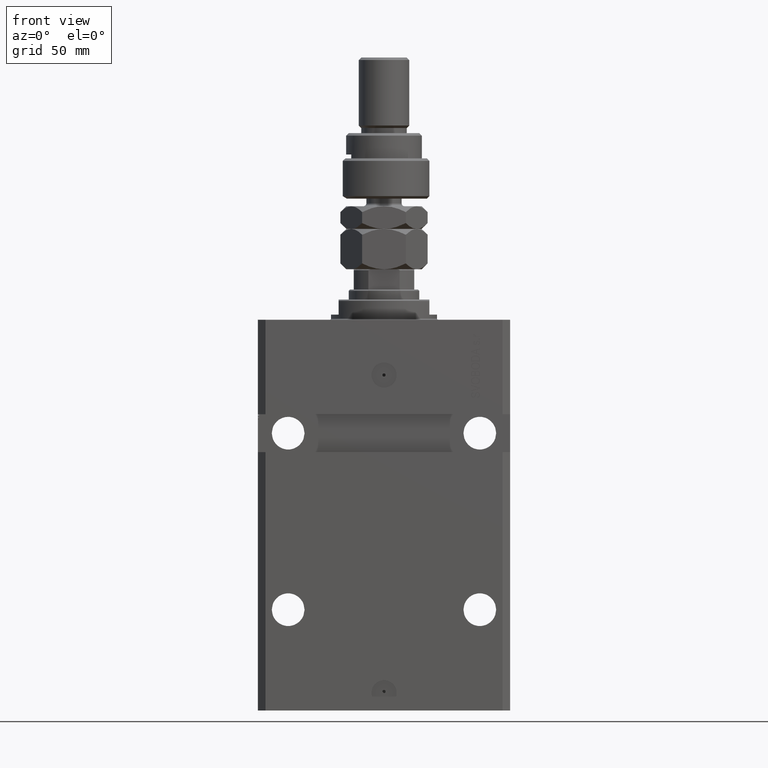
[diagram: clean part render]
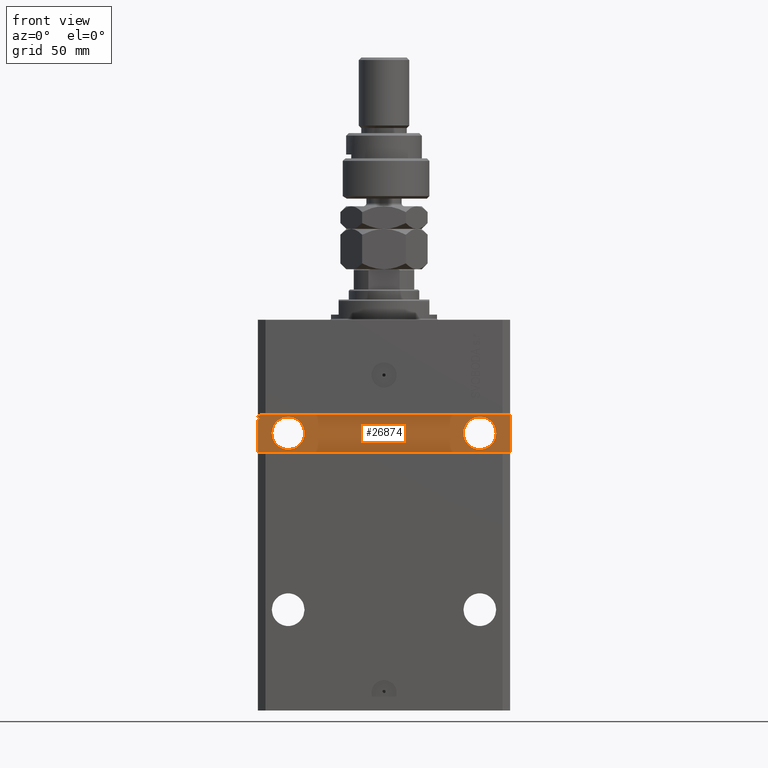
[diagram: same view with one face highlighted and labeled with its STEP entity id]
A machine part, front view. The second image highlights one B-rep face of the part: STEP entity #26874.
In plain terms, the highlighted planar face has unit normal (0, -1, 0).
Its self-contained STEP definition (entity closure, byte-faithful):
#118 = VECTOR ( 'NONE', #19372, 1000.000000000000000 ) ;
#169 = CARTESIAN_POINT ( 'NONE',  ( -50.00000000000002842, -32.50000000000000711, -37.50000000000000711 ) ) ;
#1072 = DIRECTION ( 'NONE',  ( -1.000000000000000000, -0.000000000000000000, -0.000000000000000000 ) ) ;
#1579 = LINE ( 'NONE', #48297, #29718 ) ;
#2379 = AXIS2_PLACEMENT_3D ( 'NONE', #10240, #21335, #25968 ) ;
#2575 = ORIENTED_EDGE ( 'NONE', *, *, #19072, .F. ) ;
#2998 = VECTOR ( 'NONE', #25062, 1000.000000000000000 ) ;
#3074 = VECTOR ( 'NONE', #26968, 1000.000000000000000 ) ;
#3272 = CARTESIAN_POINT ( 'NONE',  ( -49.50000000000000711, -32.50000000000000711, -37.99999999999999289 ) ) ;
#3303 = CARTESIAN_POINT ( 'NONE',  ( -50.00000000000002842, -32.50000000000000711, -37.99999999999999289 ) ) ;
#3553 = DIRECTION ( 'NONE',  ( 1.000000000000000000, 0.000000000000000000, 0.000000000000000000 ) ) ;
#3692 = DIRECTION ( 'NONE',  ( 1.387778780781445182E-16, -1.000000000000000000, 0.000000000000000000 ) ) ;
#4020 = LINE ( 'NONE', #31618, #3074 ) ;
#4213 = ORIENTED_EDGE ( 'NONE', *, *, #37078, .F. ) ;
#4556 = VECTOR ( 'NONE', #9830, 1000.000000000000000 ) ;
#5388 = VERTEX_POINT ( 'NONE', #30489 ) ;
#7564 = PLANE ( 'NONE',  #8154 ) ;
#7758 = DIRECTION ( 'NONE',  ( 8.806446732139696505E-17, -1.000000000000000000, 6.162975822039154730E-33 ) ) ;
#8154 = AXIS2_PLACEMENT_3D ( 'NONE', #46281, #3692, #19429 ) ;
#8615 = ORIENTED_EDGE ( 'NONE', *, *, #48439, .T. ) ;
#9168 = VECTOR ( 'NONE', #31484, 1000.000000000000000 ) ;
#9330 = CARTESIAN_POINT ( 'NONE',  ( -50.00000000000002842, -32.50000000000000711, -52.50000000000000000 ) ) ;
#9830 = DIRECTION ( 'NONE',  ( 1.000000000000000000, 0.000000000000000000, 0.000000000000000000 ) ) ;
#10055 = VECTOR ( 'NONE', #39111, 1000.000000000000000 ) ;
#10214 = VERTEX_POINT ( 'NONE', #22037 ) ;
#10225 = DIRECTION ( 'NONE',  ( -1.000000000000000000, -0.000000000000000000, -0.000000000000000000 ) ) ;
#10240 = CARTESIAN_POINT ( 'NONE',  ( -37.99999999999998579, -32.50000000000000711, -45.00000000000000711 ) ) ;
#10536 = VECTOR ( 'NONE', #46528, 1000.000000000000000 ) ;
#10616 = CIRCLE ( 'NONE', #2379, 6.499999999999999112 ) ;
#11076 = CARTESIAN_POINT ( 'NONE',  ( -49.49999999999999289, -32.50000000000000711, -39.43474004052496440 ) ) ;
#11277 = CIRCLE ( 'NONE', #35161, 6.499999999999999112 ) ;
#11367 = ORIENTED_EDGE ( 'NONE', *, *, #45702, .T. ) ;
#11379 = VECTOR ( 'NONE', #32747, 1000.000000000000000 ) ;
#11467 = LINE ( 'NONE', #12232, #29010 ) ;
#12232 = CARTESIAN_POINT ( 'NONE',  ( -49.50000000000000711, -32.49999999999999289, -37.62144886363635976 ) ) ;
#13959 = LINE ( 'NONE', #28915, #4556 ) ;
#14099 = LINE ( 'NONE', #23353, #10055 ) ;
#15234 = LINE ( 'NONE', #50099, #118 ) ;
#15481 = CARTESIAN_POINT ( 'NONE',  ( 31.50000000000001421, -32.50000000000000000, -45.00000000000000000 ) ) ;
#15749 = CARTESIAN_POINT ( 'NONE',  ( 49.99999999999999289, -32.49999999999999289, -52.49999999999998579 ) ) ;
#15824 = EDGE_CURVE ( 'NONE', #5388, #45083, #13959, .T. ) ;
#15975 = CARTESIAN_POINT ( 'NONE',  ( -49.49999999999977973, -32.50000000000000711, -38.87066337907741342 ) ) ;
#16161 = VERTEX_POINT ( 'NONE', #3303 ) ;
#18425 = VERTEX_POINT ( 'NONE', #33771 ) ;
#18672 = EDGE_LOOP ( 'NONE', ( #48674, #23946 ) ) ;
#18852 = CARTESIAN_POINT ( 'NONE',  ( 38.00000000000001421, -32.50000000000000000, -45.00000000000000000 ) ) ;
#18924 = EDGE_CURVE ( 'NONE', #46653, #29247, #32057, .T. ) ;
#19029 = VERTEX_POINT ( 'NONE', #48823 ) ;
#19072 = EDGE_CURVE ( 'NONE', #19029, #25015, #11277, .T. ) ;
#19372 = DIRECTION ( 'NONE',  ( 0.000000000000000000, 0.000000000000000000, -1.000000000000000000 ) ) ;
#19429 = DIRECTION ( 'NONE',  ( 1.000000000000000000, 1.387778780781445182E-16, 0.000000000000000000 ) ) ;
#20687 = EDGE_CURVE ( 'NONE', #16161, #43578, #4020, .T. ) ;
#21330 = EDGE_CURVE ( 'NONE', #18425, #23278, #48322, .T. ) ;
#21335 = DIRECTION ( 'NONE',  ( 1.101411730780568590E-16, -1.000000000000000000, 0.000000000000000000 ) ) ;
#22037 = CARTESIAN_POINT ( 'NONE',  ( -49.50000000000000711, -32.50000000000000711, -37.62144886363635976 ) ) ;
#22582 = CARTESIAN_POINT ( 'NONE',  ( -50.00000000000002842, -32.50000000000000711, -52.50000000000000000 ) ) ;
#22746 = LINE ( 'NONE', #34901, #10536 ) ;
#22934 = ORIENTED_EDGE ( 'NONE', *, *, #45714, .T. ) ;
#23131 = VERTEX_POINT ( 'NONE', #3272 ) ;
#23278 = VERTEX_POINT ( 'NONE', #169 ) ;
#23353 = CARTESIAN_POINT ( 'NONE',  ( -49.50000000000016342, -32.50000000000000711, -39.86910993535713743 ) ) ;
#23719 = CIRCLE ( 'NONE', #31131, 6.499999999999999112 ) ;
#23801 = CARTESIAN_POINT ( 'NONE',  ( 49.99999999999999289, -32.49999999999999289, -37.49999999999999289 ) ) ;
#23861 = CARTESIAN_POINT ( 'NONE',  ( -50.00000000000002842, -32.50000000000000711, -38.87066340383893959 ) ) ;
#23946 = ORIENTED_EDGE ( 'NONE', *, *, #45696, .F. ) ;
#24512 = EDGE_CURVE ( 'NONE', #10214, #31408, #22746, .T. ) ;
#24977 = CARTESIAN_POINT ( 'NONE',  ( -44.49999999999998579, -32.50000000000000711, -45.00000000000000711 ) ) ;
#25015 = VERTEX_POINT ( 'NONE', #24977 ) ;
#25062 = DIRECTION ( 'NONE',  ( 1.000000000000000000, 1.387778780781445182E-16, 1.387778780781445182E-16 ) ) ;
#25169 = EDGE_CURVE ( 'NONE', #40853, #35107, #23719, .T. ) ;
#25314 = DIRECTION ( 'NONE',  ( 1.000000000000000000, 0.000000000000000000, 0.000000000000000000 ) ) ;
#25968 = DIRECTION ( 'NONE',  ( 1.000000000000000000, 0.000000000000000000, 0.000000000000000000 ) ) ;
#26233 = ORIENTED_EDGE ( 'NONE', *, *, #20687, .T. ) ;
#26491 = ORIENTED_EDGE ( 'NONE', *, *, #15824, .F. ) ;
#26874 = ADVANCED_FACE ( 'NONE', ( #34916, #50411, #46794 ), #7564, .T. ) ;
#26968 = DIRECTION ( 'NONE',  ( 0.000000000000000000, 0.000000000000000000, -1.000000000000000000 ) ) ;
#27320 = VECTOR ( 'NONE', #10225, 1000.000000000000000 ) ;
#27348 = DIRECTION ( 'NONE',  ( 1.000000000000000000, 0.000000000000000000, 0.000000000000000000 ) ) ;
#28866 = LINE ( 'NONE', #36131, #11379 ) ;
#28915 = CARTESIAN_POINT ( 'NONE',  ( -49.50000000000001421, -32.50000000000000711, -39.43474002179300442 ) ) ;
#29010 = VECTOR ( 'NONE', #39086, 1000.000000000000000 ) ;
#29247 = VERTEX_POINT ( 'NONE', #32285 ) ;
#29444 = CARTESIAN_POINT ( 'NONE',  ( -37.99999999999998579, -32.50000000000000711, -45.00000000000000711 ) ) ;
#29718 = VECTOR ( 'NONE', #1072, 1000.000000000000000 ) ;
#29749 = CIRCLE ( 'NONE', #38014, 6.499999999999999112 ) ;
#30076 = LINE ( 'NONE', #37327, #27320 ) ;
#30489 = CARTESIAN_POINT ( 'NONE',  ( -50.00000000000002842, -32.50000000000000711, -39.43474002179300442 ) ) ;
#30552 = VERTEX_POINT ( 'NONE', #15975 ) ;
#30976 = LINE ( 'NONE', #15749, #9168 ) ;
#31131 = AXIS2_PLACEMENT_3D ( 'NONE', #43305, #46913, #3553 ) ;
#31255 = ORIENTED_EDGE ( 'NONE', *, *, #46644, .T. ) ;
#31408 = VERTEX_POINT ( 'NONE', #46003 ) ;
#31484 = DIRECTION ( 'NONE',  ( 0.000000000000000000, 0.000000000000000000, 1.000000000000000000 ) ) ;
#31618 = CARTESIAN_POINT ( 'NONE',  ( -50.00000000000002842, -32.50000000000000711, -37.50000000000000711 ) ) ;
#31810 = ORIENTED_EDGE ( 'NONE', *, *, #35921, .T. ) ;
#32057 = LINE ( 'NONE', #9330, #2998 ) ;
#32285 = CARTESIAN_POINT ( 'NONE',  ( 49.99999999999999289, -32.49999999999999289, -52.49999999999998579 ) ) ;
#32747 = DIRECTION ( 'NONE',  ( 0.000000000000000000, 0.000000000000000000, -1.000000000000000000 ) ) ;
#33771 = CARTESIAN_POINT ( 'NONE',  ( 49.99999999999999289, -32.49999999999999289, -37.49999999999999289 ) ) ;
#33838 = DIRECTION ( 'NONE',  ( 1.101411730780568590E-16, -1.000000000000000000, 0.000000000000000000 ) ) ;
#34901 = CARTESIAN_POINT ( 'NONE',  ( -49.50000000000000711, -32.49999999999999289, -37.62144886363635976 ) ) ;
#34916 = FACE_BOUND ( 'NONE', #18672, .T. ) ;
#34934 = EDGE_LOOP ( 'NONE', ( #2575, #4213 ) ) ;
#35107 = VERTEX_POINT ( 'NONE', #15481 ) ;
#35161 = AXIS2_PLACEMENT_3D ( 'NONE', #29444, #33838, #25314 ) ;
#35659 = ORIENTED_EDGE ( 'NONE', *, *, #47574, .F. ) ;
#35921 = EDGE_CURVE ( 'NONE', #23278, #31408, #28866, .T. ) ;
#36131 = CARTESIAN_POINT ( 'NONE',  ( -50.00000000000002842, -32.50000000000000711, -37.50000000000000711 ) ) ;
#37078 = EDGE_CURVE ( 'NONE', #25015, #19029, #10616, .T. ) ;
#37327 = CARTESIAN_POINT ( 'NONE',  ( -49.50000000000000711, -32.49999999999999289, -37.99999999999999289 ) ) ;
#38014 = AXIS2_PLACEMENT_3D ( 'NONE', #18852, #7758, #27348 ) ;
#39075 = ORIENTED_EDGE ( 'NONE', *, *, #21330, .T. ) ;
#39086 = DIRECTION ( 'NONE',  ( 0.000000000000000000, 0.000000000000000000, -1.000000000000000000 ) ) ;
#39111 = DIRECTION ( 'NONE',  ( 3.791485858024926499E-13, 5.261743621399924533E-29, 1.000000000000000000 ) ) ;
#39559 = DIRECTION ( 'NONE',  ( -1.000000000000000000, -1.387778780781445182E-16, -1.387778780781445182E-16 ) ) ;
#40853 = VERTEX_POINT ( 'NONE', #47273 ) ;
#41014 = VECTOR ( 'NONE', #39559, 1000.000000000000000 ) ;
#41743 = ORIENTED_EDGE ( 'NONE', *, *, #24512, .F. ) ;
#42562 = EDGE_CURVE ( 'NONE', #30552, #43578, #1579, .T. ) ;
#42563 = ORIENTED_EDGE ( 'NONE', *, *, #18924, .T. ) ;
#43305 = CARTESIAN_POINT ( 'NONE',  ( 38.00000000000001421, -32.50000000000000000, -45.00000000000000000 ) ) ;
#43578 = VERTEX_POINT ( 'NONE', #23861 ) ;
#45083 = VERTEX_POINT ( 'NONE', #11076 ) ;
#45696 = EDGE_CURVE ( 'NONE', #35107, #40853, #29749, .T. ) ;
#45702 = EDGE_CURVE ( 'NONE', #5388, #46653, #15234, .T. ) ;
#45714 = EDGE_CURVE ( 'NONE', #29247, #18425, #30976, .T. ) ;
#46003 = CARTESIAN_POINT ( 'NONE',  ( -50.00000000000002842, -32.50000000000000711, -37.62144886363636687 ) ) ;
#46281 = CARTESIAN_POINT ( 'NONE',  ( 4.616128571667024604E-15, -32.50000000000000000, 0.000000000000000000 ) ) ;
#46528 = DIRECTION ( 'NONE',  ( -1.000000000000000000, -0.000000000000000000, -0.000000000000000000 ) ) ;
#46644 = EDGE_CURVE ( 'NONE', #23131, #16161, #30076, .T. ) ;
#46653 = VERTEX_POINT ( 'NONE', #22582 ) ;
#46794 = FACE_OUTER_BOUND ( 'NONE', #50268, .T. ) ;
#46913 = DIRECTION ( 'NONE',  ( 8.806446732139696505E-17, -1.000000000000000000, 6.162975822039154730E-33 ) ) ;
#47273 = CARTESIAN_POINT ( 'NONE',  ( 44.50000000000001421, -32.50000000000000000, -45.00000000000000000 ) ) ;
#47574 = EDGE_CURVE ( 'NONE', #45083, #30552, #14099, .T. ) ;
#48297 = CARTESIAN_POINT ( 'NONE',  ( -49.50000000000001421, -32.50000000000001421, -38.87066340383893959 ) ) ;
#48322 = LINE ( 'NONE', #23801, #41014 ) ;
#48439 = EDGE_CURVE ( 'NONE', #10214, #23131, #11467, .T. ) ;
#48674 = ORIENTED_EDGE ( 'NONE', *, *, #25169, .F. ) ;
#48823 = CARTESIAN_POINT ( 'NONE',  ( -31.49999999999998579, -32.50000000000000711, -45.00000000000000711 ) ) ;
#49515 = ORIENTED_EDGE ( 'NONE', *, *, #42562, .F. ) ;
#50099 = CARTESIAN_POINT ( 'NONE',  ( -50.00000000000002842, -32.50000000000000711, -37.50000000000000711 ) ) ;
#50268 = EDGE_LOOP ( 'NONE', ( #26233, #49515, #35659, #26491, #11367, #42563, #22934, #39075, #31810, #41743, #8615, #31255 ) ) ;
#50411 = FACE_BOUND ( 'NONE', #34934, .T. ) ;